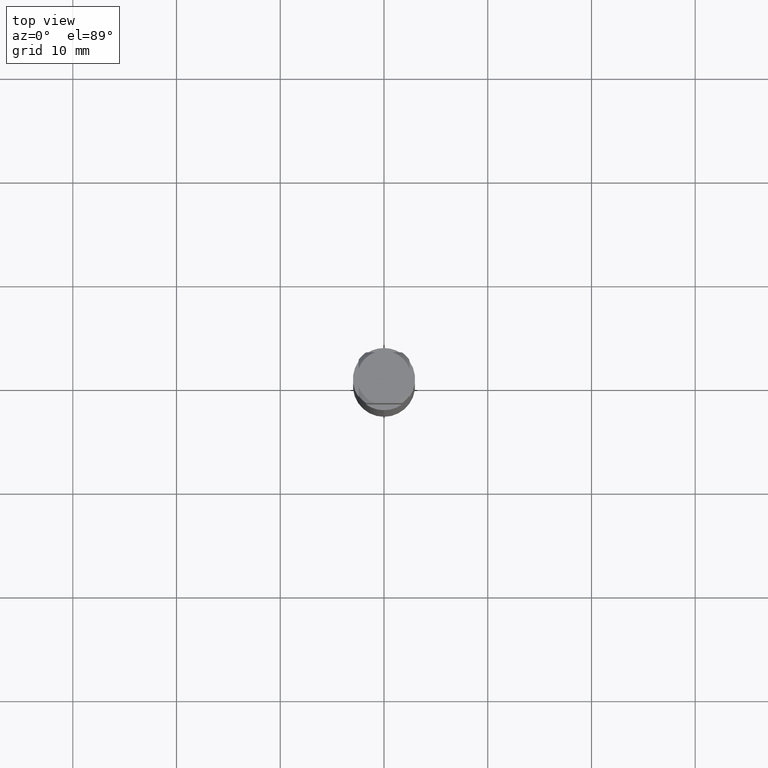
[diagram: clean part render]
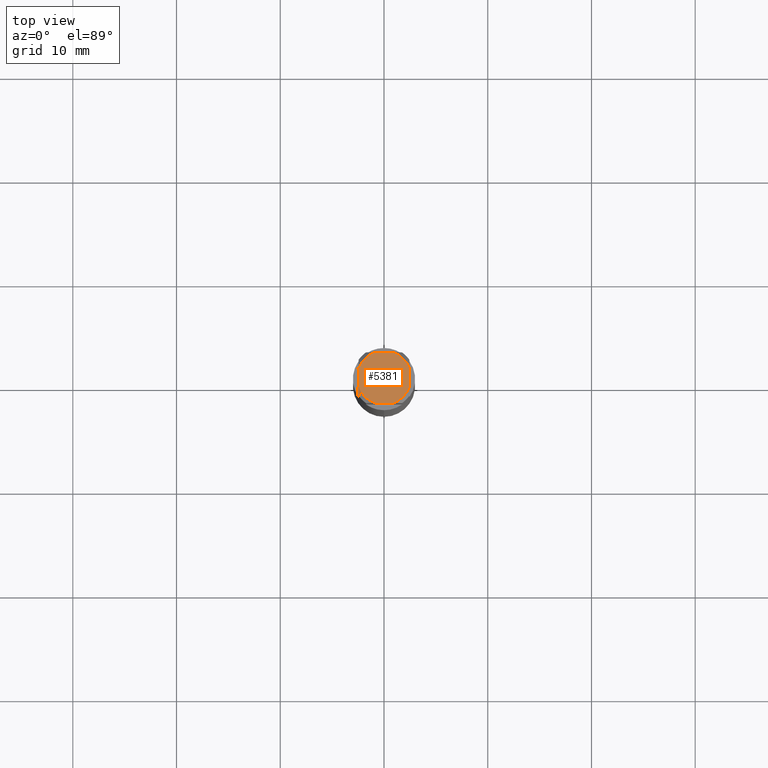
[diagram: same view with one face highlighted and labeled with its STEP entity id]
A machine part, top view. The second image highlights one B-rep face of the part: STEP entity #5381.
In plain terms, the highlighted planar face has unit normal (-0, 0, 1).
Its self-contained STEP definition (entity closure, byte-faithful):
#3059=VERTEX_POINT('',#8947);
#3089=EDGE_CURVE('',#3059,#8233,#8979,.T.);
#3415=VERTEX_POINT('',#9342);
#3591=EDGE_CURVE('',#5403,#8233,#9530,.T.);
#4211=VERTEX_POINT('',#10213);
#4423=EDGE_CURVE('',#3415,#5167,#10446,.T.);
#5167=VERTEX_POINT('',#11251);
#5381=ADVANCED_FACE('',(#11484),#11485,.T.);
#5403=VERTEX_POINT('',#11510);
#5841=VERTEX_POINT('',#11983);
#6921=EDGE_CURVE('',#3415,#4211,#13163,.T.);
#7129=EDGE_CURVE('',#5841,#8555,#13384,.T.);
#7819=EDGE_CURVE('',#5403,#4211,#14125,.T.);
#8103=EDGE_CURVE('',#3059,#8555,#14428,.T.);
#8233=VERTEX_POINT('',#14570);
#8265=EDGE_CURVE('',#5841,#5167,#14606,.T.);
#8555=VERTEX_POINT('',#14920);
#8947=CARTESIAN_POINT('',(-2.45,0.87034475927646,0.0));
#8979=CIRCLE('',#15474,2.6);
#9342=CARTESIAN_POINT('',(2.45,-0.87034475927646,0.0));
#9530=LINE('',#16502,#16503);
#10213=CARTESIAN_POINT('',(2.45,0.87034475927646,0.0));
#10446=CIRCLE('',#18244,2.6);
#11251=CARTESIAN_POINT('',(0.87034475927646,-2.45,0.0));
#11484=FACE_OUTER_BOUND('',#20215,.T.);
#11485=PLANE('',#20216);
#11510=CARTESIAN_POINT('',(0.87034475927646,2.45,0.0));
#11983=CARTESIAN_POINT('',(-0.87034475927646,-2.45,0.0));
#13163=LINE('',#23284,#23285);
#13384=CIRCLE('',#23712,2.6);
#14125=CIRCLE('',#25147,2.6);
#14428=LINE('',#25677,#25678);
#14570=CARTESIAN_POINT('',(-0.87034475927646,2.45,0.0));
#14606=LINE('',#25970,#25971);
#14920=CARTESIAN_POINT('',(-2.45,-0.87034475927646,0.0));
#15474=AXIS2_PLACEMENT_3D('',#27390,#27391,#27392);
#16502=CARTESIAN_POINT('',(0.0,2.45,0.0));
#16503=VECTOR('',#27952,1.0);
#18244=AXIS2_PLACEMENT_3D('',#29067,#29068,#29069);
#20215=EDGE_LOOP('',(#30226,#30227,#30228,#30229,#30230,#30231,#30232,#30233));
#20216=AXIS2_PLACEMENT_3D('',#30234,#30235,#30236);
#23284=CARTESIAN_POINT('',(2.45,0.65,0.0));
#23285=VECTOR('',#32058,1.0);
#23712=AXIS2_PLACEMENT_3D('',#32243,#32244,#32245);
#25147=AXIS2_PLACEMENT_3D('',#33057,#33058,#33059);
#25677=CARTESIAN_POINT('',(-2.45,0.65,0.0));
#25678=VECTOR('',#33332,1.0);
#25970=CARTESIAN_POINT('',(0.0,-2.45,0.0));
#25971=VECTOR('',#33516,1.0);
#27390=CARTESIAN_POINT('',(0.0,0.0,0.0));
#27391=DIRECTION('',(0.0,0.0,-1.0));
#27392=DIRECTION('',(0.0,1.0,0.0));
#27952=DIRECTION('',(-1.0,0.0,0.0));
#29067=CARTESIAN_POINT('',(0.0,0.0,0.0));
#29068=DIRECTION('',(0.0,0.0,-1.0));
#29069=DIRECTION('',(0.0,1.0,0.0));
#30226=ORIENTED_EDGE('',*,*,#8103,.T.);
#30227=ORIENTED_EDGE('',*,*,#7129,.F.);
#30228=ORIENTED_EDGE('',*,*,#8265,.T.);
#30229=ORIENTED_EDGE('',*,*,#4423,.F.);
#30230=ORIENTED_EDGE('',*,*,#6921,.T.);
#30231=ORIENTED_EDGE('',*,*,#7819,.F.);
#30232=ORIENTED_EDGE('',*,*,#3591,.T.);
#30233=ORIENTED_EDGE('',*,*,#3089,.F.);
#30234=CARTESIAN_POINT('',(0.0,1.3,0.0));
#30235=DIRECTION('',(-0.0,0.0,1.0));
#30236=DIRECTION('',(0.0,-1.0,0.0));
#32058=DIRECTION('',(-0.0,1.0,0.0));
#32243=CARTESIAN_POINT('',(0.0,0.0,0.0));
#32244=DIRECTION('',(0.0,0.0,-1.0));
#32245=DIRECTION('',(0.0,1.0,0.0));
#33057=CARTESIAN_POINT('',(0.0,0.0,0.0));
#33058=DIRECTION('',(0.0,0.0,-1.0));
#33059=DIRECTION('',(0.0,1.0,0.0));
#33332=DIRECTION('',(-0.0,-1.0,0.0));
#33516=DIRECTION('',(1.0,0.0,0.0));